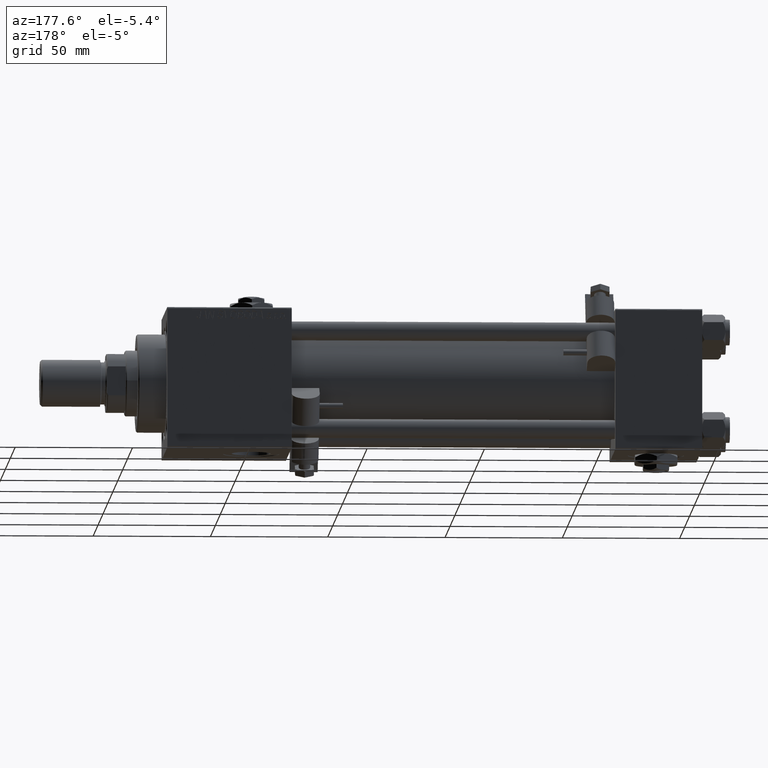
[diagram: clean part render]
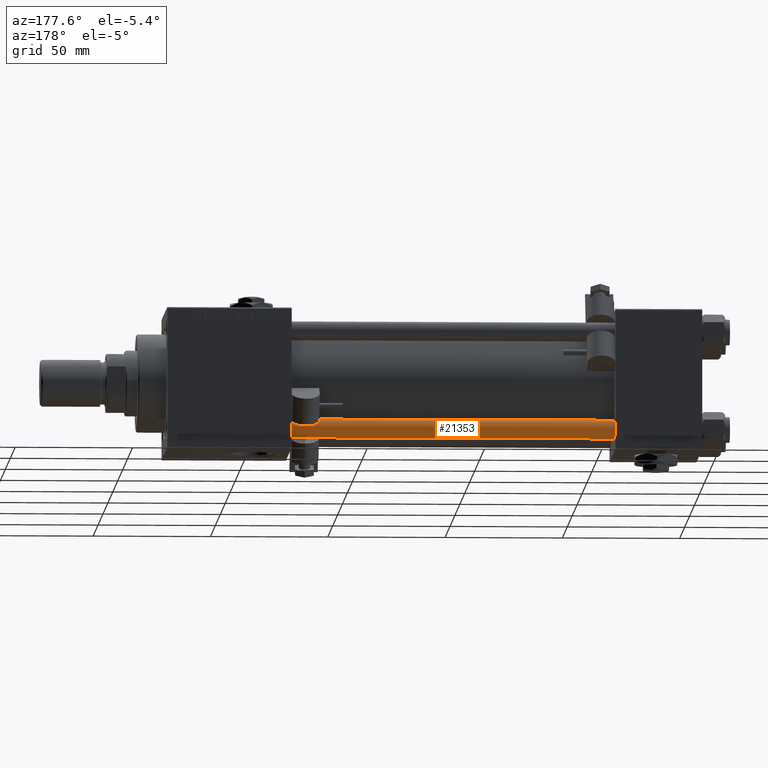
[diagram: same view with one face highlighted and labeled with its STEP entity id]
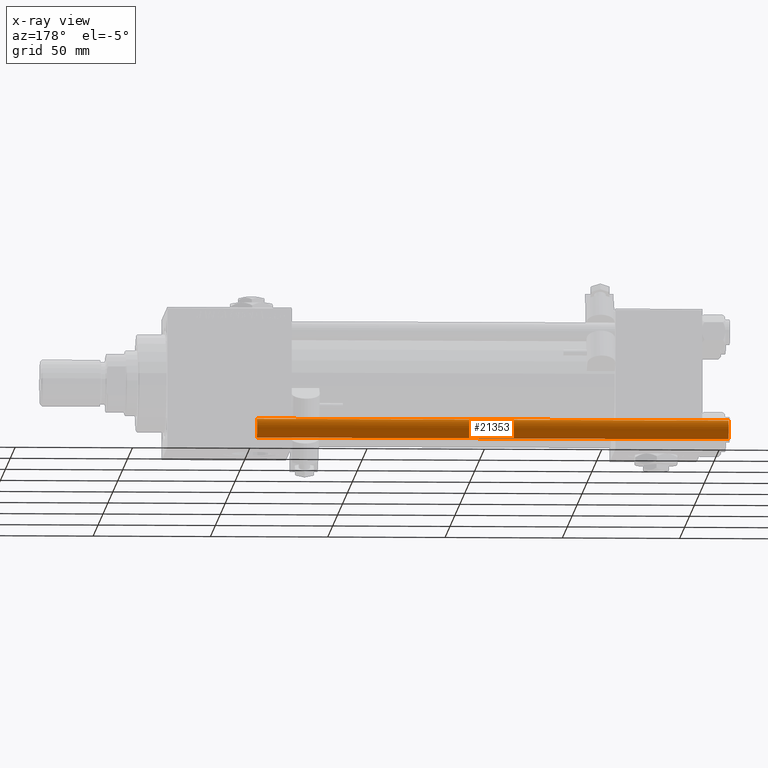
[diagram: x-ray of the same camera — body ghosted, the highlighted face saturated]
A machine part, auxiliary view. The second image highlights one B-rep face of the part: STEP entity #21353.
The next image is the same camera in x-ray: the body ghosted, the highlighted face saturated — about 0% of this face is hidden behind the body in this view.
In plain terms, the highlighted cylindrical surface (edge-blend (fillet) strip) has radius 4 mm, axis along (-1, 0, 0).
Its self-contained STEP definition (entity closure, byte-faithful):
#804 = ORIENTED_EDGE ( 'NONE', *, *, #21436, .T. ) ;
#2049 = DIRECTION ( 'NONE',  ( -0.000000000000000000, -0.000000000000000000, -1.000000000000000000 ) ) ;
#2313 = CARTESIAN_POINT ( 'NONE',  ( 0.000000000000000000, 0.000000000000000000, 0.5000000000000004441 ) ) ;
#4014 = AXIS2_PLACEMENT_3D ( 'NONE', #38762, #2049, #34399 ) ;
#6930 = CARTESIAN_POINT ( 'NONE',  ( 4.000000000000000000, 4.898587196589412829E-16, 202.0000000000000000 ) ) ;
#8308 = AXIS2_PLACEMENT_3D ( 'NONE', #2313, #40113, #23252 ) ;
#10802 = CARTESIAN_POINT ( 'NONE',  ( 4.000000000000000000, 4.898587196589412829E-16, 201.5000000000000000 ) ) ;
#11593 = VECTOR ( 'NONE', #32203, 1000.000000000000000 ) ;
#14323 = AXIS2_PLACEMENT_3D ( 'NONE', #50797, #18420, #14336 ) ;
#14336 = DIRECTION ( 'NONE',  ( 1.000000000000000000, 0.000000000000000000, 0.000000000000000000 ) ) ;
#15012 = CARTESIAN_POINT ( 'NONE',  ( -4.000000000000000000, 0.000000000000000000, 0.5000000000000004441 ) ) ;
#15076 = LINE ( 'NONE', #6930, #38708 ) ;
#17315 = CARTESIAN_POINT ( 'NONE',  ( 4.000000000000000000, 4.898587196589412829E-16, 0.5000000000000004441 ) ) ;
#18420 = DIRECTION ( 'NONE',  ( 0.000000000000000000, 0.000000000000000000, -1.000000000000000000 ) ) ;
#21353 = ADVANCED_FACE ( 'NONE', ( #42844 ), #43646, .T. ) ;
#21436 = EDGE_CURVE ( 'NONE', #35092, #46535, #15076, .T. ) ;
#23252 = DIRECTION ( 'NONE',  ( 1.000000000000000000, 0.000000000000000000, 0.000000000000000000 ) ) ;
#25075 = CARTESIAN_POINT ( 'NONE',  ( -4.000000000000000000, 0.000000000000000000, 201.5000000000000000 ) ) ;
#27992 = ORIENTED_EDGE ( 'NONE', *, *, #44956, .F. ) ;
#28137 = VERTEX_POINT ( 'NONE', #15012 ) ;
#29827 = VERTEX_POINT ( 'NONE', #25075 ) ;
#31085 = ORIENTED_EDGE ( 'NONE', *, *, #50301, .T. ) ;
#32203 = DIRECTION ( 'NONE',  ( -0.000000000000000000, -0.000000000000000000, -1.000000000000000000 ) ) ;
#34399 = DIRECTION ( 'NONE',  ( -1.000000000000000000, 0.000000000000000000, 0.000000000000000000 ) ) ;
#35092 = VERTEX_POINT ( 'NONE', #10802 ) ;
#36566 = LINE ( 'NONE', #53429, #11593 ) ;
#38708 = VECTOR ( 'NONE', #40109, 1000.000000000000000 ) ;
#38762 = CARTESIAN_POINT ( 'NONE',  ( 0.000000000000000000, 0.000000000000000000, 202.0000000000000000 ) ) ;
#40109 = DIRECTION ( 'NONE',  ( -0.000000000000000000, -0.000000000000000000, -1.000000000000000000 ) ) ;
#40113 = DIRECTION ( 'NONE',  ( -0.000000000000000000, -0.000000000000000000, 1.000000000000000000 ) ) ;
#42844 = FACE_OUTER_BOUND ( 'NONE', #50514, .T. ) ;
#42971 = CIRCLE ( 'NONE', #14323, 4.000000000000000000 ) ;
#43646 = CYLINDRICAL_SURFACE ( 'NONE', #4014, 4.000000000000000000 ) ;
#44956 = EDGE_CURVE ( 'NONE', #29827, #28137, #36566, .T. ) ;
#46535 = VERTEX_POINT ( 'NONE', #17315 ) ;
#48288 = CIRCLE ( 'NONE', #8308, 4.000000000000000000 ) ;
#48307 = ORIENTED_EDGE ( 'NONE', *, *, #48312, .T. ) ;
#48312 = EDGE_CURVE ( 'NONE', #29827, #35092, #42971, .T. ) ;
#50301 = EDGE_CURVE ( 'NONE', #46535, #28137, #48288, .T. ) ;
#50514 = EDGE_LOOP ( 'NONE', ( #48307, #804, #31085, #27992 ) ) ;
#50797 = CARTESIAN_POINT ( 'NONE',  ( 0.000000000000000000, 0.000000000000000000, 201.5000000000000000 ) ) ;
#53429 = CARTESIAN_POINT ( 'NONE',  ( -4.000000000000000000, 0.000000000000000000, 202.0000000000000000 ) ) ;